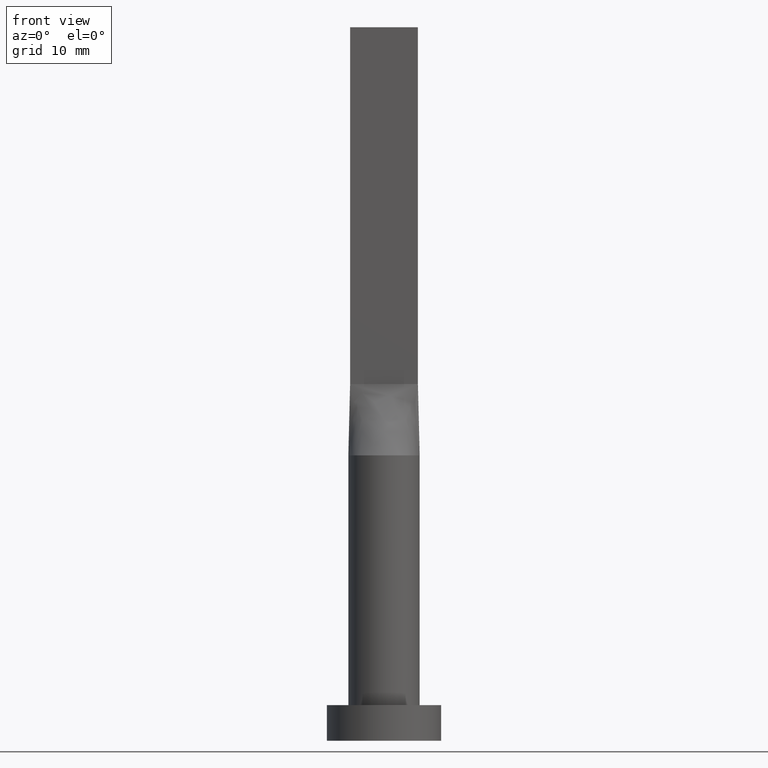
[diagram: clean part render]
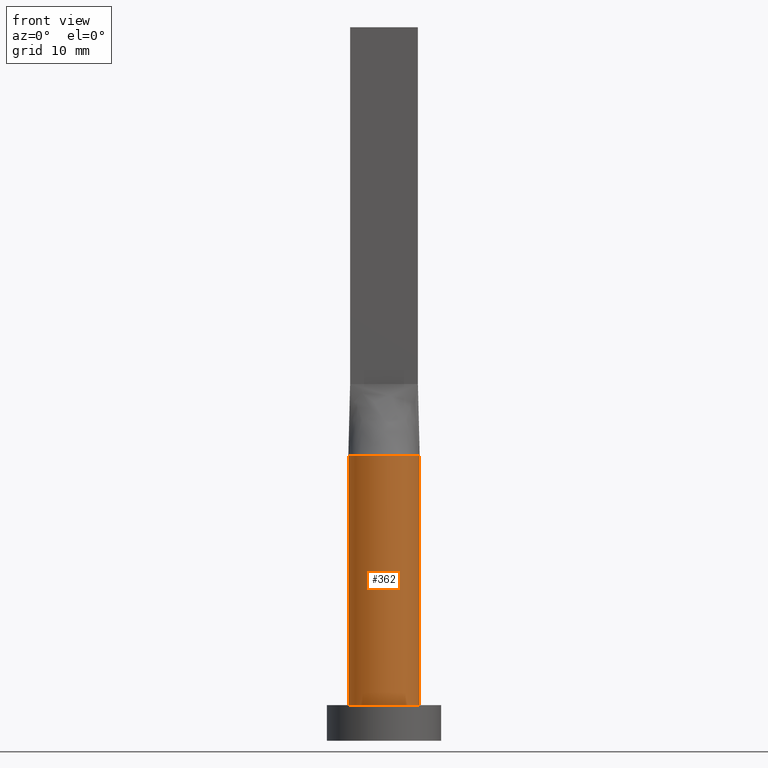
[diagram: same view with one face highlighted and labeled with its STEP entity id]
A machine part, front view. The second image highlights one B-rep face of the part: STEP entity #362.
In plain terms, the highlighted cylindrical surface (edge-blend (fillet) strip) has radius 5 mm, axis along (-0, -0, -1).
Its self-contained STEP definition (entity closure, byte-faithful):
#1 = EDGE_CURVE ( 'NONE', #193, #394, #350, .T. ) ;
#8 = EDGE_CURVE ( 'NONE', #159, #101, #402, .T. ) ;
#11 = VECTOR ( 'NONE', #167, 1000.000000000000000 ) ;
#23 = AXIS2_PLACEMENT_3D ( 'NONE', #505, #132, #100 ) ;
#41 = DIRECTION ( 'NONE',  ( 0.000000000000000000, 0.000000000000000000, 1.000000000000000000 ) ) ;
#44 = CARTESIAN_POINT ( 'NONE',  ( 4.938833698301754893, -0.7798158709413661738, 40.00000000000000000 ) ) ;
#58 = EDGE_CURVE ( 'NONE', #394, #151, #519, .T. ) ;
#77 = CARTESIAN_POINT ( 'NONE',  ( -5.000000000000000000, 0.000000000000000000, 5.000000000000000000 ) ) ;
#90 = LINE ( 'NONE', #550, #428 ) ;
#100 = DIRECTION ( 'NONE',  ( 1.000000000000000000, 2.664535259100375697E-15, 0.000000000000000000 ) ) ;
#101 = VERTEX_POINT ( 'NONE', #44 ) ;
#103 = VERTEX_POINT ( 'NONE', #604 ) ;
#108 = EDGE_CURVE ( 'NONE', #101, #103, #209, .T. ) ;
#116 = EDGE_LOOP ( 'NONE', ( #587, #124, #174, #536, #337, #565 ) ) ;
#124 = ORIENTED_EDGE ( 'NONE', *, *, #108, .F. ) ;
#129 = CARTESIAN_POINT ( 'NONE',  ( 0.000000000000000000, 0.000000000000000000, 40.00000000000000000 ) ) ;
#132 = DIRECTION ( 'NONE',  ( 0.000000000000000000, 0.000000000000000000, 1.000000000000000000 ) ) ;
#151 = VERTEX_POINT ( 'NONE', #335 ) ;
#156 = CARTESIAN_POINT ( 'NONE',  ( 0.000000000000000000, 0.000000000000000000, 40.00000000000000000 ) ) ;
#159 = VERTEX_POINT ( 'NONE', #478 ) ;
#167 = DIRECTION ( 'NONE',  ( -0.000000000000000000, -0.000000000000000000, -1.000000000000000000 ) ) ;
#174 = ORIENTED_EDGE ( 'NONE', *, *, #8, .F. ) ;
#193 = VERTEX_POINT ( 'NONE', #288 ) ;
#205 = AXIS2_PLACEMENT_3D ( 'NONE', #156, #512, #282 ) ;
#209 = CIRCLE ( 'NONE', #23, 5.000000000000000000 ) ;
#252 = AXIS2_PLACEMENT_3D ( 'NONE', #612, #41, #321 ) ;
#282 = DIRECTION ( 'NONE',  ( 1.000000000000000000, 0.000000000000000000, 0.000000000000000000 ) ) ;
#288 = CARTESIAN_POINT ( 'NONE',  ( -4.999812818728077701, -1.193032336741890821E-15, 40.00000000000000000 ) ) ;
#318 = AXIS2_PLACEMENT_3D ( 'NONE', #129, #504, #420 ) ;
#321 = DIRECTION ( 'NONE',  ( 1.000000000000000000, 0.000000000000000000, 0.000000000000000000 ) ) ;
#330 = CIRCLE ( 'NONE', #205, 5.000000000000000000 ) ;
#335 = CARTESIAN_POINT ( 'NONE',  ( 5.000000000000000000, 6.123233995736766282E-16, 5.000000000000000000 ) ) ;
#337 = ORIENTED_EDGE ( 'NONE', *, *, #1, .T. ) ;
#350 = LINE ( 'NONE', #500, #11 ) ;
#355 = CARTESIAN_POINT ( 'NONE',  ( 0.000000000000000000, 0.000000000000000000, 40.00000000000000000 ) ) ;
#359 = DIRECTION ( 'NONE',  ( 0.000000000000000000, 0.000000000000000000, 1.000000000000000000 ) ) ;
#362 = ADVANCED_FACE ( 'NONE', ( #366 ), #554, .T. ) ;
#366 = FACE_OUTER_BOUND ( 'NONE', #116, .T. ) ;
#394 = VERTEX_POINT ( 'NONE', #77 ) ;
#402 = CIRCLE ( 'NONE', #559, 5.000000000000000000 ) ;
#420 = DIRECTION ( 'NONE',  ( -1.000000000000000000, 0.000000000000000000, 0.000000000000000000 ) ) ;
#428 = VECTOR ( 'NONE', #562, 1000.000000000000000 ) ;
#433 = EDGE_CURVE ( 'NONE', #103, #151, #90, .T. ) ;
#478 = CARTESIAN_POINT ( 'NONE',  ( -4.938821632323166178, -0.7798139456827060112, 40.00000000000000000 ) ) ;
#500 = CARTESIAN_POINT ( 'NONE',  ( -5.000000000000000000, 0.000000000000000000, 40.00000000000000000 ) ) ;
#504 = DIRECTION ( 'NONE',  ( -0.000000000000000000, -0.000000000000000000, -1.000000000000000000 ) ) ;
#505 = CARTESIAN_POINT ( 'NONE',  ( 0.000000000000000000, 0.000000000000000000, 40.00000000000000000 ) ) ;
#512 = DIRECTION ( 'NONE',  ( 0.000000000000000000, 0.000000000000000000, 1.000000000000000000 ) ) ;
#519 = CIRCLE ( 'NONE', #252, 5.000000000000000000 ) ;
#536 = ORIENTED_EDGE ( 'NONE', *, *, #564, .F. ) ;
#544 = DIRECTION ( 'NONE',  ( 1.000000000000000000, 0.000000000000000000, 0.000000000000000000 ) ) ;
#550 = CARTESIAN_POINT ( 'NONE',  ( 5.000000000000000000, 6.123233995736766282E-16, 40.00000000000000000 ) ) ;
#554 = CYLINDRICAL_SURFACE ( 'NONE', #318, 5.000000000000000000 ) ;
#559 = AXIS2_PLACEMENT_3D ( 'NONE', #355, #359, #544 ) ;
#562 = DIRECTION ( 'NONE',  ( -0.000000000000000000, -0.000000000000000000, -1.000000000000000000 ) ) ;
#564 = EDGE_CURVE ( 'NONE', #193, #159, #330, .T. ) ;
#565 = ORIENTED_EDGE ( 'NONE', *, *, #58, .T. ) ;
#587 = ORIENTED_EDGE ( 'NONE', *, *, #433, .F. ) ;
#604 = CARTESIAN_POINT ( 'NONE',  ( 4.999812818728077701, 1.241126956226958231E-15, 40.00000000000000000 ) ) ;
#612 = CARTESIAN_POINT ( 'NONE',  ( 0.000000000000000000, 0.000000000000000000, 5.000000000000000000 ) ) ;